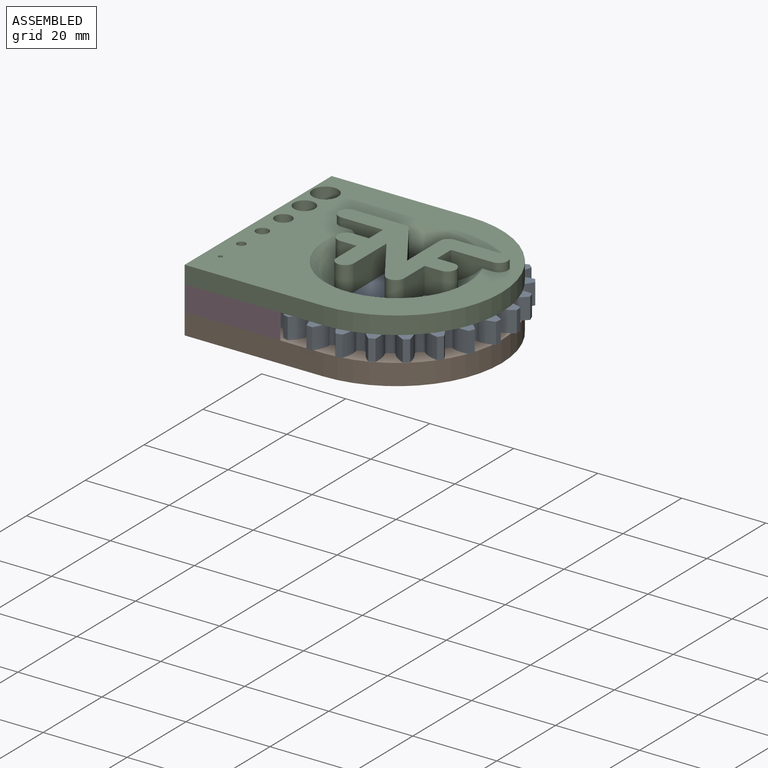
[diagram: assembled view]
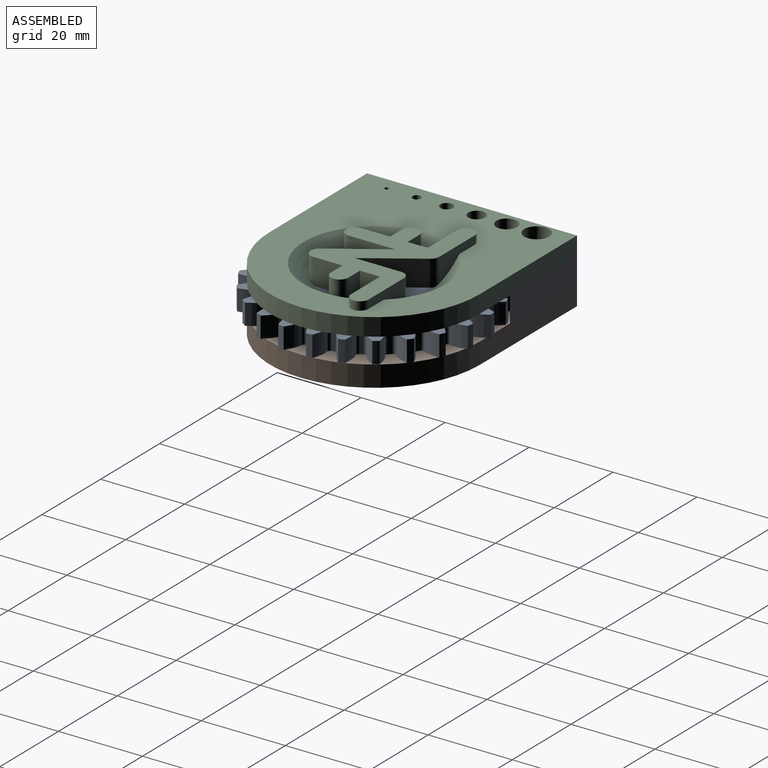
[diagram: assembled view, second angle]
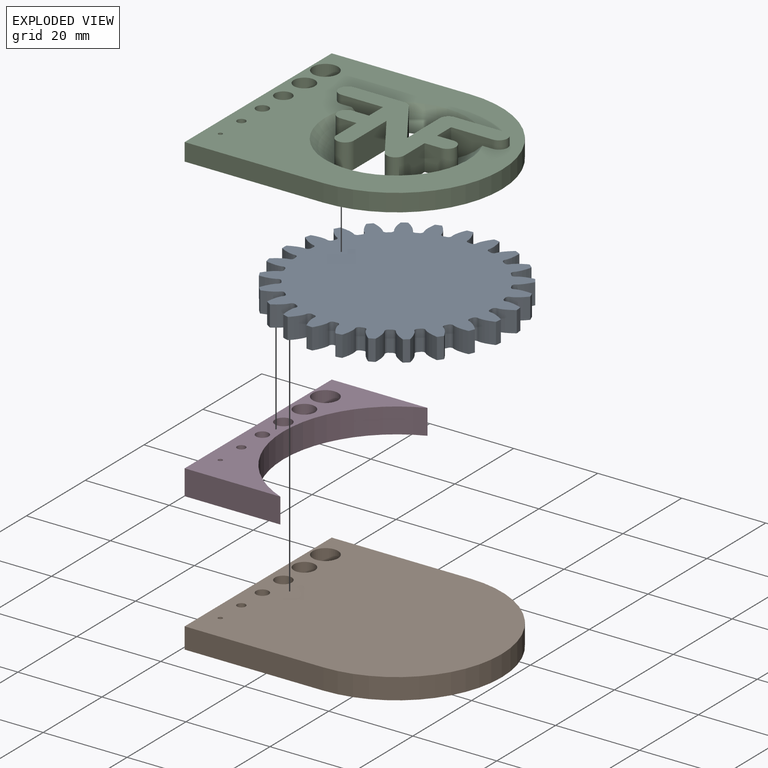
[diagram: exploded view]
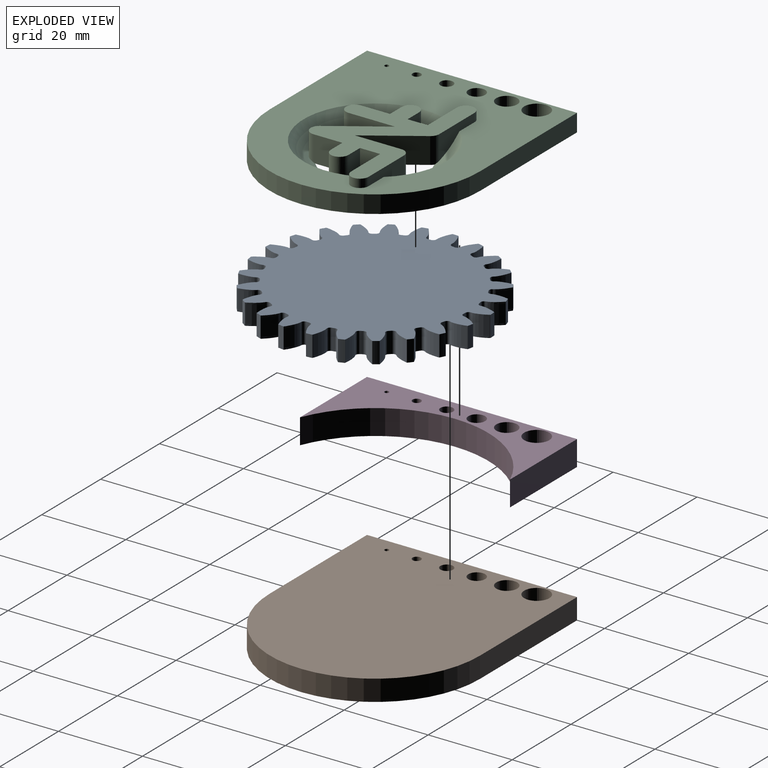
[diagram: exploded view, second angle]
ASSEMBLY  parts=4 mates=3
PART A: 152 faces, bbox 53.9x5x54 mm
  f0: cylinder r=27mm len=5mm, axis (0,1,0), area 7.2mm2, adj f24,f26,f137,f149
  f1: cylinder r=27mm len=5mm, axis (0,1,0), area 7.2mm2, adj f24,f26,f144,f147
  f2: cylinder r=27mm len=5mm, axis (0,1,0), area 7.2mm2, adj f24,f26,f132,f139
  f3: cylinder r=27mm len=5mm, axis (0,1,0), area 7.2mm2, adj f24,f26,f127,f134
  f4: cylinder r=27mm len=5mm, axis (0,1,0), area 7.2mm2, adj f24,f26,f122,f129
  f5: cylinder r=27mm len=5mm, axis (0,1,0), area 7.2mm2, adj f24,f26,f112,f124
  f6: cylinder r=27mm len=5mm, axis (0,1,0), area 7.2mm2, adj f24,f26,f107,f119
  f7: cylinder r=27mm len=5mm, axis (0,1,0), area 7.2mm2, adj f24,f26,f114,f117
  f8: cylinder r=27mm len=5mm, axis (0,1,0), area 7.2mm2, adj f24,f26,f102,f109
  f9: cylinder r=27mm len=5mm, axis (0,1,0), area 7.2mm2, adj f24,f26,f97,f104
  f10: cylinder r=27mm len=5mm, axis (0,1,0), area 7.2mm2, adj f24,f26,f92,f99
  f11: cylinder r=27mm len=5mm, axis (0,1,0), area 7.2mm2, adj f24,f26,f77,f94
  f12: cylinder r=27mm len=5mm, axis (0,1,0), area 7.2mm2, adj f24,f26,f27,f89
  f13: cylinder r=27mm len=5mm, axis (0,1,0), area 7.2mm2, adj f24,f26,f84,f87
  f14: cylinder r=27mm len=5mm, axis (0,1,0), area 7.2mm2, adj f24,f26,f72,f79
  f15: cylinder r=27mm len=5mm, axis (0,1,0), area 7.2mm2, adj f24,f26,f74,f82
  f16: cylinder r=27mm len=5mm, axis (0,1,0), area 7.2mm2, adj f24,f26,f69,f142
  f17: cylinder r=27mm len=5mm, axis (0,1,0), area 7.2mm2, adj f24,f26,f64,f67
  f18: cylinder r=27mm len=5mm, axis (0,1,0), area 7.2mm2, adj f24,f26,f59,f62
  f19: cylinder r=27mm len=5mm, axis (0,1,0), area 7.2mm2, adj f24,f26,f54,f57
  f20: cylinder r=27mm len=5mm, axis (0,1,0), area 7.2mm2, adj f24,f26,f42,f49
  f21: cylinder r=27mm len=5mm, axis (0,1,0), area 7.2mm2, adj f24,f26,f32,f44
  f22: cylinder r=27mm len=5mm, axis (0,1,0), area 7.2mm2, adj f24,f26,f39,f52
  f23: cylinder r=27mm len=5mm, axis (0,1,0), area 7.2mm2, adj f24,f26,f34,f37
  f24: plane 53.97x53.87mm, normal (0,-1,0), area 1934.5mm2, adj f0,f1,f2,f3,f4,f5,f6,f7
  f25: cylinder r=27mm len=5mm, axis (0,1,0), area 7.2mm2, adj f24,f26,f29,f47
  f26: plane 53.97x53.87mm, normal (0,1,0), area 1934.5mm2, adj f0,f1,f2,f3,f4,f5,f6,f7
  f27: extruded ~5x3.65mm, area 20.1mm2, adj f12,f24,f26,f30
  f28: cylinder r=22.5mm len=5mm, axis (0,1,0), area 3.4mm2, adj f24,f26,f30,f31
  f29: extruded ~5x3.65mm, area 20.1mm2, adj f24,f25,f26,f31
  f30: cylinder r=0.76mm len=5mm, axis (0,1,0), area 5.8mm2, adj f24,f26,f27,f28
  f31: cylinder r=0.76mm len=5mm, axis (0,1,0), area 5.8mm2, adj f24,f26,f28,f29
  f32: extruded ~5x3.73mm, area 20.1mm2, adj f21,f24,f26,f35
  f33: cylinder r=22.5mm len=5mm, axis (0,1,0), area 3.4mm2, adj f24,f26,f35,f36
  f34: extruded ~5x3.64mm, area 20.1mm2, adj f23,f24,f26,f36
  f35: cylinder r=0.76mm len=5mm, axis (0,1,0), area 5.8mm2, adj f24,f26,f32,f33
  f36: cylinder r=0.76mm len=5mm, axis (0,1,0), area 5.8mm2, adj f24,f26,f33,f34
  f37: extruded ~5x3.27mm, area 20.1mm2, adj f23,f24,f26,f40
  f38: cylinder r=22.5mm len=5mm, axis (0,1,0), area 3.4mm2, adj f24,f26,f40,f41
  f39: extruded ~5x3.92mm, area 20.1mm2, adj f22,f24,f26,f41
  f40: cylinder r=0.76mm len=5mm, axis (0,1,0), area 5.8mm2, adj f24,f26,f37,f38
  f41: cylinder r=0.76mm len=5mm, axis (0,1,0), area 5.8mm2, adj f24,f26,f38,f39
  f42: extruded ~5x3.95mm, area 20.1mm2, adj f20,f24,f26,f45
  f43: cylinder r=22.5mm len=5mm, axis (0,1,0), area 3.4mm2, adj f24,f26,f45,f46
  f44: extruded ~5x3.12mm, area 20.1mm2, adj f21,f24,f26,f46
  f45: cylinder r=0.76mm len=5mm, axis (0,1,0), area 5.8mm2, adj f24,f26,f42,f43
  f46: cylinder r=0.76mm len=5mm, axis (0,1,0), area 5.8mm2, adj f24,f26,f43,f44
  f47: extruded ~5x3.92mm, area 20.1mm2, adj f24,f25,f26,f50
  f48: cylinder r=22.5mm len=5mm, axis (0,1,0), area 3.4mm2, adj f24,f26,f50,f51
  f49: extruded ~5x3.15mm, area 20.1mm2, adj f20,f24,f26,f51
  f50: cylinder r=0.76mm len=5mm, axis (0,1,0), area 5.8mm2, adj f24,f26,f47,f48
  f51: cylinder r=0.76mm len=5mm, axis (0,1,0), area 5.8mm2, adj f24,f26,f48,f49
  f52: extruded ~5x2.99mm, area 20.1mm2, adj f22,f24,f26,f55
  f53: cylinder r=22.5mm len=5mm, axis (0,1,0), area 3.4mm2, adj f24,f26,f55,f56
  f54: extruded ~5x3.95mm, area 20.1mm2, adj f19,f24,f26,f56
  f55: cylinder r=0.76mm len=5mm, axis (0,1,0), area 5.8mm2, adj f24,f26,f52,f53
  f56: cylinder r=0.76mm len=5mm, axis (0,1,0), area 5.8mm2, adj f24,f26,f53,f54
  f57: extruded ~5x3.55mm, area 20.1mm2, adj f19,f24,f26,f60
  f58: cylinder r=22.5mm len=5mm, axis (0,1,0), area 3.4mm2, adj f24,f26,f60,f61
  f59: extruded ~5x3.74mm, area 20.1mm2, adj f18,f24,f26,f61
  f60: cylinder r=0.76mm len=5mm, axis (0,1,0), area 5.8mm2, adj f24,f26,f57,f58
  f61: cylinder r=0.76mm len=5mm, axis (0,1,0), area 5.8mm2, adj f24,f26,f58,f59
  f62: extruded ~5x3.88mm, area 20.1mm2, adj f18,f24,f26,f65
  f63: cylinder r=22.5mm len=5mm, axis (0,1,0), area 3.4mm2, adj f24,f26,f65,f66
  f64: extruded ~5x3.29mm, area 20.1mm2, adj f17,f24,f26,f66
  f65: cylinder r=0.76mm len=5mm, axis (0,1,0), area 5.8mm2, adj f24,f26,f62,f63
  f66: cylinder r=0.76mm len=5mm, axis (0,1,0), area 5.8mm2, adj f24,f26,f63,f64
  f67: extruded ~5x3.97mm, area 20.1mm2, adj f17,f24,f26,f70
  f68: cylinder r=22.5mm len=5mm, axis (0,1,0), area 3.4mm2, adj f24,f26,f70,f71
  f69: extruded ~5x2.96mm, area 20.1mm2, adj f16,f24,f26,f71
  f70: cylinder r=0.76mm len=5mm, axis (0,1,0), area 5.8mm2, adj f24,f26,f67,f68
  f71: cylinder r=0.76mm len=5mm, axis (0,1,0), area 5.8mm2, adj f24,f26,f68,f69
  f72: extruded ~5x3.64mm, area 20.1mm2, adj f14,f24,f26,f75
  f73: cylinder r=22.5mm len=5mm, axis (0,1,0), area 3.4mm2, adj f24,f26,f75,f76
  f74: extruded ~5x3.73mm, area 20.1mm2, adj f15,f24,f26,f76
  f75: cylinder r=0.76mm len=5mm, axis (0,1,0), area 5.8mm2, adj f24,f26,f72,f73
  f76: cylinder r=0.76mm len=5mm, axis (0,1,0), area 5.8mm2, adj f24,f26,f73,f74
  f77: extruded ~5x3.92mm, area 20.1mm2, adj f11,f24,f26,f80
  f78: cylinder r=22.5mm len=5mm, axis (0,1,0), area 3.4mm2, adj f24,f26,f80,f81
  f79: extruded ~5x3.27mm, area 20.1mm2, adj f14,f24,f26,f81
  f80: cylinder r=0.76mm len=5mm, axis (0,1,0), area 5.8mm2, adj f24,f26,f77,f78
  f81: cylinder r=0.76mm len=5mm, axis (0,1,0), area 5.8mm2, adj f24,f26,f78,f79
  f82: extruded ~5x3.12mm, area 20.1mm2, adj f15,f24,f26,f85
  f83: cylinder r=22.5mm len=5mm, axis (0,1,0), area 3.4mm2, adj f24,f26,f85,f86
  f84: extruded ~5x3.95mm, area 20.1mm2, adj f13,f24,f26,f86
  f85: cylinder r=0.76mm len=5mm, axis (0,1,0), area 5.8mm2, adj f24,f26,f82,f83
  f86: cylinder r=0.76mm len=5mm, axis (0,1,0), area 5.8mm2, adj f24,f26,f83,f84
  f87: extruded ~5x3.15mm, area 20.1mm2, adj f13,f24,f26,f90
  f88: cylinder r=22.5mm len=5mm, axis (0,1,0), area 3.4mm2, adj f24,f26,f90,f91
  f89: extruded ~5x3.92mm, area 20.1mm2, adj f12,f24,f26,f91
  f90: cylinder r=0.76mm len=5mm, axis (0,1,0), area 5.8mm2, adj f24,f26,f87,f88
  f91: cylinder r=0.76mm len=5mm, axis (0,1,0), area 5.8mm2, adj f24,f26,f88,f89
  f92: extruded ~5x3.95mm, area 20.1mm2, adj f10,f24,f26,f95
  f93: cylinder r=22.5mm len=5mm, axis (0,1,0), area 3.4mm2, adj f24,f26,f95,f96
  f94: extruded ~5x2.99mm, area 20.1mm2, adj f11,f24,f26,f96
  f95: cylinder r=0.76mm len=5mm, axis (0,1,0), area 5.8mm2, adj f24,f26,f92,f93
  f96: cylinder r=0.76mm len=5mm, axis (0,1,0), area 5.8mm2, adj f24,f26,f93,f94
  f97: extruded ~5x3.74mm, area 20.1mm2, adj f9,f24,f26,f100
  f98: cylinder r=22.5mm len=5mm, axis (0,1,0), area 3.4mm2, adj f24,f26,f100,f101
  f99: extruded ~5x3.55mm, area 20.1mm2, adj f10,f24,f26,f101
  f100: cylinder r=0.76mm len=5mm, axis (0,1,0), area 5.8mm2, adj f24,f26,f97,f98
  f101: cylinder r=0.76mm len=5mm, axis (0,1,0), area 5.8mm2, adj f24,f26,f98,f99
  f102: extruded ~5x3.29mm, area 20.1mm2, adj f8,f24,f26,f105
  f103: cylinder r=22.5mm len=5mm, axis (0,1,0), area 3.4mm2, adj f24,f26,f105,f106
  f104: extruded ~5x3.88mm, area 20.1mm2, adj f9,f24,f26,f106
  f105: cylinder r=0.76mm len=5mm, axis (0,1,0), area 5.8mm2, adj f24,f26,f102,f103
  f106: cylinder r=0.76mm len=5mm, axis (0,1,0), area 5.8mm2, adj f24,f26,f103,f104
  f107: extruded ~5x2.96mm, area 20.1mm2, adj f6,f24,f26,f110
  f108: cylinder r=22.5mm len=5mm, axis (0,1,0), area 3.4mm2, adj f24,f26,f110,f111
  f109: extruded ~5x3.97mm, area 20.1mm2, adj f8,f24,f26,f111
  f110: cylinder r=0.76mm len=5mm, axis (0,1,0), area 5.8mm2, adj f24,f26,f107,f108
  f111: cylinder r=0.76mm len=5mm, axis (0,1,0), area 5.8mm2, adj f24,f26,f108,f109
  f112: extruded ~5x3.87mm, area 20.1mm2, adj f5,f24,f26,f115
  f113: cylinder r=22.5mm len=5mm, axis (0,1,0), area 3.4mm2, adj f24,f26,f115,f116
  f114: extruded ~5x3.41mm, area 20.1mm2, adj f7,f24,f26,f116
  f115: cylinder r=0.76mm len=5mm, axis (0,1,0), area 5.8mm2, adj f24,f26,f112,f113
  f116: cylinder r=0.76mm len=5mm, axis (0,1,0), area 5.8mm2, adj f24,f26,f113,f114
  f117: extruded ~5x3.53mm, area 20.1mm2, adj f7,f24,f26,f120
  f118: cylinder r=22.5mm len=5mm, axis (0,1,0), area 3.4mm2, adj f24,f26,f120,f121
  f119: extruded ~5x3.81mm, area 20.1mm2, adj f6,f24,f26,f121
  f120: cylinder r=0.76mm len=5mm, axis (0,1,0), area 5.8mm2, adj f24,f26,f117,f118
  f121: cylinder r=0.76mm len=5mm, axis (0,1,0), area 5.8mm2, adj f24,f26,f118,f119
  f122: extruded ~5x3.97mm, area 20.1mm2, adj f4,f24,f26,f125
  f123: cylinder r=22.5mm len=5mm, axis (0,1,0), area 3.4mm2, adj f24,f26,f125,f126
  f124: extruded ~5x2.82mm, area 20.1mm2, adj f5,f24,f26,f126
  f125: cylinder r=0.76mm len=5mm, axis (0,1,0), area 5.8mm2, adj f24,f26,f122,f123
  f126: cylinder r=0.76mm len=5mm, axis (0,1,0), area 5.8mm2, adj f24,f26,f123,f124
  f127: extruded ~5x3.82mm, area 20.1mm2, adj f3,f24,f26,f130
  f128: cylinder r=22.5mm len=5mm, axis (0,1,0), area 3.4mm2, adj f24,f26,f130,f131
  f129: extruded ~5x3.43mm, area 20.1mm2, adj f4,f24,f26,f131
  f130: cylinder r=0.76mm len=5mm, axis (0,1,0), area 5.8mm2, adj f24,f26,f127,f128
  f131: cylinder r=0.76mm len=5mm, axis (0,1,0), area 5.8mm2, adj f24,f26,f128,f129
  f132: extruded ~5x3.43mm, area 20.1mm2, adj f2,f24,f26,f135
  f133: cylinder r=22.5mm len=5mm, axis (0,1,0), area 3.4mm2, adj f24,f26,f135,f136
  f134: extruded ~5x3.82mm, area 20.1mm2, adj f3,f24,f26,f136
  f135: cylinder r=0.76mm len=5mm, axis (0,1,0), area 5.8mm2, adj f24,f26,f132,f133
  f136: cylinder r=0.76mm len=5mm, axis (0,1,0), area 5.8mm2, adj f24,f26,f133,f134
  f137: extruded ~5x2.82mm, area 20.1mm2, adj f0,f24,f26,f140
  f138: cylinder r=22.5mm len=5mm, axis (0,1,0), area 3.4mm2, adj f24,f26,f140,f141
  f139: extruded ~5x3.97mm, area 20.1mm2, adj f2,f24,f26,f141
  f140: cylinder r=0.76mm len=5mm, axis (0,1,0), area 5.8mm2, adj f24,f26,f137,f138
  f141: cylinder r=0.76mm len=5mm, axis (0,1,0), area 5.8mm2, adj f24,f26,f138,f139
  f142: extruded ~5x3.81mm, area 20.1mm2, adj f16,f24,f26,f145
  f143: cylinder r=22.5mm len=5mm, axis (0,1,0), area 3.4mm2, adj f24,f26,f145,f146
  f144: extruded ~5x3.53mm, area 20.1mm2, adj f1,f24,f26,f146
  f145: cylinder r=0.76mm len=5mm, axis (0,1,0), area 5.8mm2, adj f24,f26,f142,f143
  f146: cylinder r=0.76mm len=5mm, axis (0,1,0), area 5.8mm2, adj f24,f26,f143,f144
  f147: extruded ~5x3.41mm, area 20.1mm2, adj f1,f24,f26,f150
  f148: cylinder r=22.5mm len=5mm, axis (0,1,0), area 3.4mm2, adj f24,f26,f150,f151
  f149: extruded ~5x3.87mm, area 20.1mm2, adj f0,f24,f26,f151
  f150: cylinder r=0.76mm len=5mm, axis (0,1,0), area 5.8mm2, adj f24,f26,f147,f148
  f151: cylinder r=0.76mm len=5mm, axis (0,1,0), area 5.8mm2, adj f24,f26,f148,f149
PART B: 12 faces, bbox 58x50x5 mm
  f0: plane 33x5mm, normal (0,1,0), area 165mm2, adj f1,f3,f4,f5
  f1: cylinder r=25mm len=50mm, axis (0,0,1), area 392.7mm2, adj f0,f2,f4,f5
  f2: plane 33x5mm, normal (0,-1,0), area 165mm2, adj f1,f3,f4,f5
  f3: plane 50x5mm, normal (-1,0,0), area 250mm2, adj f0,f2,f4,f5
  f4: plane 58x50mm, normal (0,0,-1), area 2560.3mm2, adj f0,f1,f2,f3,f6,f7,f8,f9
  f5: plane 58x50mm, normal (0,0,1), area 2560.3mm2, adj f0,f1,f2,f3,f6,f7,f8,f9
  f6: cylinder r=1.5mm len=5mm, axis (0,0,1), area 47.1mm2, adj f4,f5
  f7: cylinder r=1mm len=5mm, axis (0,0,1), area 31.4mm2, adj f4,f5
  f8: cylinder r=3mm len=6mm, axis (0,0,1), area 94.2mm2, adj f4,f5
  f9: cylinder r=2.5mm len=5mm, axis (0,0,1), area 78.5mm2, adj f4,f5
  f10: cylinder r=2mm len=5mm, axis (0,0,1), area 62.8mm2, adj f4,f5
  f11: cylinder r=0.5mm len=5mm, axis (0,0,1), area 15.7mm2, adj f4,f5
PART C: 39 faces, bbox 58x50x6.2 mm
  f0: plane 58x50mm, normal (0,0,1), area 1607.8mm2, adj f1,f2,f3,f4,f5,f6,f20,f23
  f1: torus R=2mm, axis (0,0,-1), area 135.1mm2, adj f0,f7,f8,f9,f20,f23
  f2: torus R=2mm, axis (0,0,-1), area 376.4mm2, adj f0,f7,f10,f11,f12,f13,f14,f15
  f3: plane 33x4.2mm, normal (0,1,0), area 138.6mm2, adj f0,f4,f6,f7
  f4: plane 50x4.2mm, normal (-1,0,0), area 210mm2, adj f0,f3,f5,f7
  f5: plane 33x4.2mm, normal (0,-1,0), area 138.6mm2, adj f0,f4,f6,f7
  f6: cylinder r=25mm len=50mm, axis (0,0,-1), area 329.9mm2, adj f0,f3,f5,f7
  f7: plane 58x50mm, normal (0,0,-1), area 2381mm2, adj f1,f2,f3,f4,f5,f6,f8,f9
  f8: cylinder r=2.1mm len=6.2mm, axis (0,0,-1), area 20.2mm2, adj f1,f7,f20,f21,f32
  f9: cylinder r=2.1mm len=6.2mm, axis (0,0,-1), area 12.5mm2, adj f1,f7,f22,f23,f32
  f10: plane 6.2x3.9mm, normal (0,1,0), area 24.1mm2, adj f2,f7,f11,f26,f32
  f11: cylinder r=2.1mm len=5.99mm, axis (0,0,-1), area 34.1mm2, adj f2,f10,f12,f32
  f12: plane 6.2x3.9mm, normal (0,-1,0), area 24.1mm2, adj f2,f7,f11,f13,f32
  f13: plane 6.9x6.2mm, normal (-1,0,0), area 42.7mm2, adj f2,f7,f12,f14,f32
  f14: cylinder r=2.1mm len=6.2mm, axis (0,0,-1), area 38.8mm2, adj f2,f7,f13,f27,f32
  f15: cylinder r=2.1mm len=6.2mm, axis (0,0,-1), area 31.2mm2, adj f2,f7,f16,f28,f32
  f16: plane 6.9x6.2mm, normal (1,0,0), area 42.7mm2, adj f2,f7,f15,f17,f32
  f17: plane 6.2x3.9mm, normal (0,-1,0), area 24.1mm2, adj f2,f7,f16,f18,f32
  f18: cylinder r=2.1mm len=5.99mm, axis (0,0,-1), area 34.1mm2, adj f2,f17,f19,f32
  f19: plane 6.2x3.9mm, normal (0,1,0), area 24.1mm2, adj f2,f7,f18,f29,f32
  f20: plane 12x5.72mm, normal (0,1,0), area 38.9mm2, adj f0,f1,f8,f31,f32
  f21: plane 11.06x6.2mm, normal (-1,0,0), area 68.6mm2, adj f7,f8,f22,f32
  f22: plane 12.23x8.15mm, normal (0.83,0.55,0), area 91.1mm2, adj f7,f9,f21,f32
  f23: plane 12x5.72mm, normal (0,1,0), area 38.9mm2, adj f0,f1,f9,f24,f32
  f24: cylinder r=2.1mm len=4.2mm, axis (0,0,-1), area 13.2mm2, adj f0,f23,f25,f32
  f25: plane 9.9x6.2mm, normal (0,-1,0), area 40.2mm2, adj f0,f2,f7,f24,f26,f32
  f26: plane 6.2x4.8mm, normal (-1,0,0), area 29.8mm2, adj f7,f10,f25,f32
  f27: plane 11.06x6.2mm, normal (1,0,0), area 68.6mm2, adj f7,f14,f28,f32
  f28: plane 12.23x8.15mm, normal (-0.83,-0.55,0), area 91.1mm2, adj f7,f15,f27,f32
  f29: plane 6.2x4.8mm, normal (1,0,0), area 29.8mm2, adj f7,f19,f30,f32
  f30: plane 9.9x6.2mm, normal (0,-1,0), area 40.2mm2, adj f0,f2,f7,f29,f31,f32
  f31: cylinder r=2.1mm len=4.2mm, axis (0,0,-1), area 13.2mm2, adj f0,f20,f30,f32
  f32: plane 40.2x22.2mm, normal (0,0,1), area 383.6mm2, adj f8,f9,f10,f11,f12,f13,f14,f15
  f33: cylinder r=1.5mm len=4.2mm, axis (0,0,1), area 39.6mm2, adj f0,f7
  f34: cylinder r=1mm len=4.2mm, axis (0,0,1), area 26.4mm2, adj f0,f7
  f35: cylinder r=3mm len=6mm, axis (0,0,1), area 79.2mm2, adj f0,f7
  f36: cylinder r=2.5mm len=5mm, axis (0,0,1), area 66mm2, adj f0,f7
  f37: cylinder r=2mm len=4.2mm, axis (0,0,1), area 52.8mm2, adj f0,f7
  f38: cylinder r=0.5mm len=4.2mm, axis (0,0,1), area 13.2mm2, adj f0,f7
PART D: 12 faces, bbox 22.8x50x6 mm
  f0: cylinder r=27mm len=50mm, axis (0,0,1), area 383.4mm2, adj f1,f3,f4,f5
  f1: plane 22.8x6mm, normal (0,-1,0), area 136.8mm2, adj f0,f2,f4,f5
  f2: plane 50x6mm, normal (-1,0,0), area 300mm2, adj f1,f3,f4,f5
  f3: plane 22.8x6mm, normal (0,1,0), area 136.8mm2, adj f0,f2,f4,f5
  f4: plane 50x22.8mm, normal (0,0,-1), area 460.8mm2, adj f0,f1,f2,f3,f6,f7,f8,f9
  f5: plane 50x22.8mm, normal (0,0,1), area 460.8mm2, adj f0,f1,f2,f3,f6,f7,f8,f9
  f6: cylinder r=1.5mm len=6mm, axis (0,0,1), area 56.5mm2, adj f4,f5
  f7: cylinder r=1mm len=6mm, axis (0,0,1), area 37.7mm2, adj f4,f5
  f8: cylinder r=3mm len=6mm, axis (0,0,1), area 113.1mm2, adj f4,f5
  f9: cylinder r=2.5mm len=6mm, axis (0,0,1), area 94.2mm2, adj f4,f5
  f10: cylinder r=2mm len=6mm, axis (0,0,1), area 75.4mm2, adj f4,f5
  f11: cylinder r=0.5mm len=6mm, axis (0,0,1), area 18.8mm2, adj f4,f5
PLACE A rot(axis=(-0.5,0.61,-0.61),126.8deg) t=(-4.8,29.99,31.42)mm
PLACE B t=(-4.8,29.99,36.42)mm
PLACE C t=(-4.8,29.99,36.42)mm fixed
PLACE D t=(-4.8,29.99,36.42)mm
MATE revolute A.f0 <-> C.f6  axis (0,0,1) through (-4.8,29.99,36.42)mm
MATE fastened D.f8 <-> C.f35  axis (0,0,1) through (-34.3,47.84,36.42)mm
MATE fastened B.f8 <-> D.f8  axis (0,0,1) through (-34.3,47.84,30.42)mm
